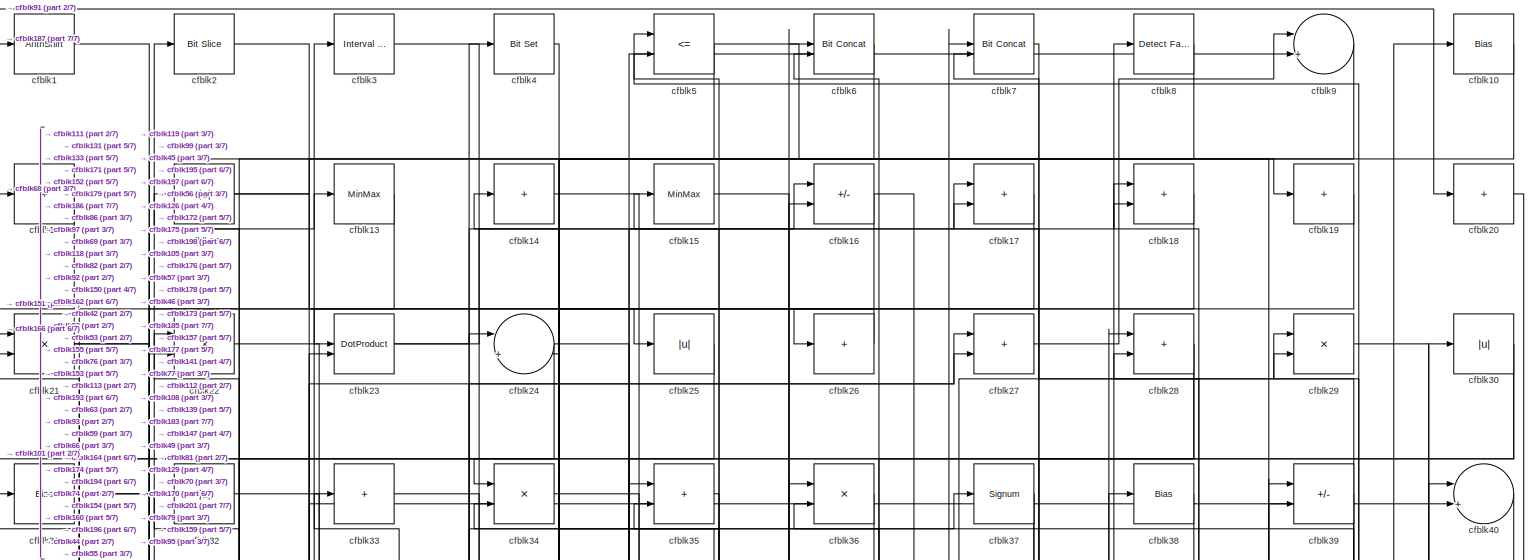
[diagram: root canvas - part 1/7, full width, top band]
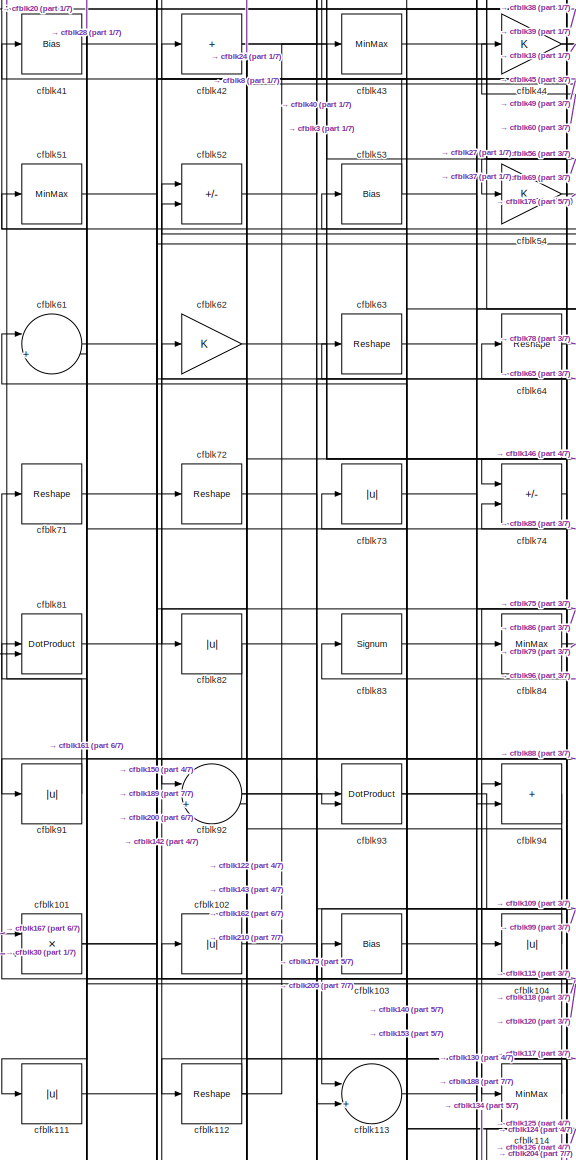
[diagram: root canvas - part 2/7, middle left region]
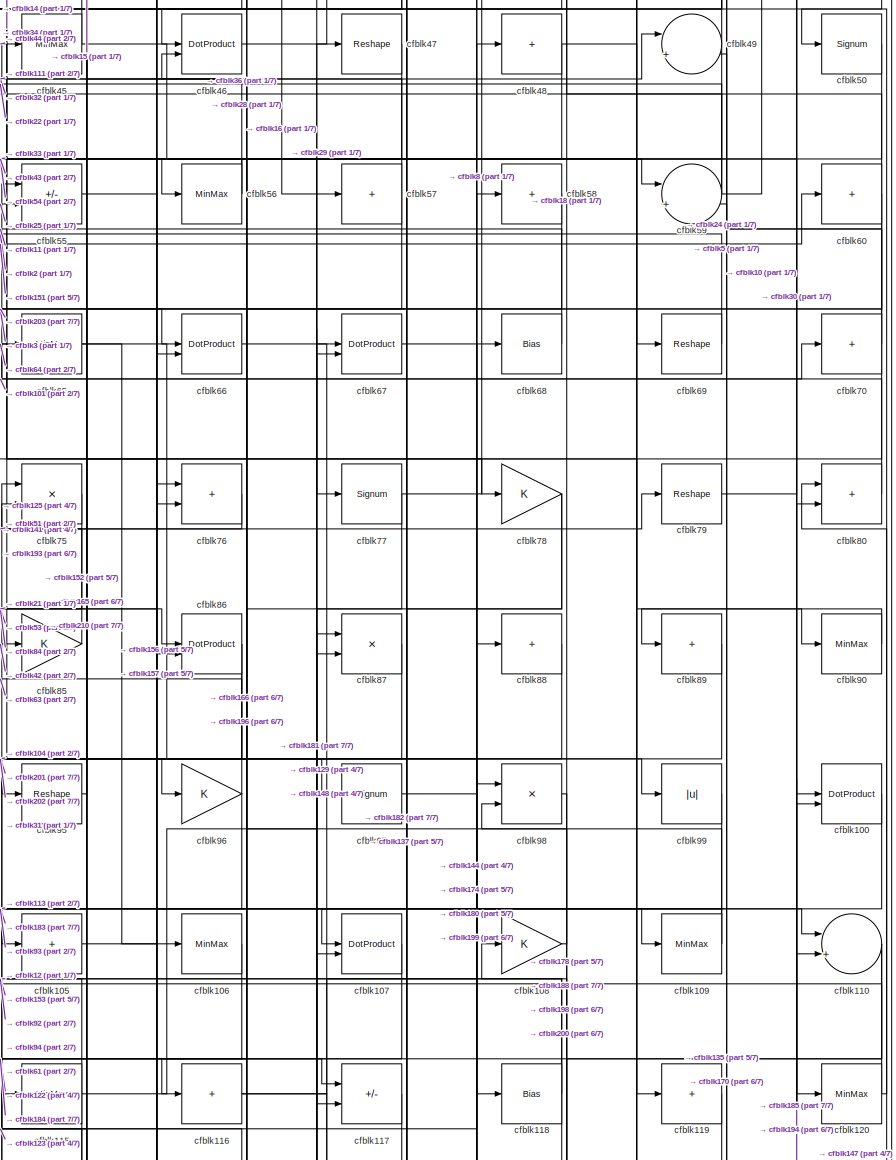
[diagram: root canvas - part 3/7, middle right region]
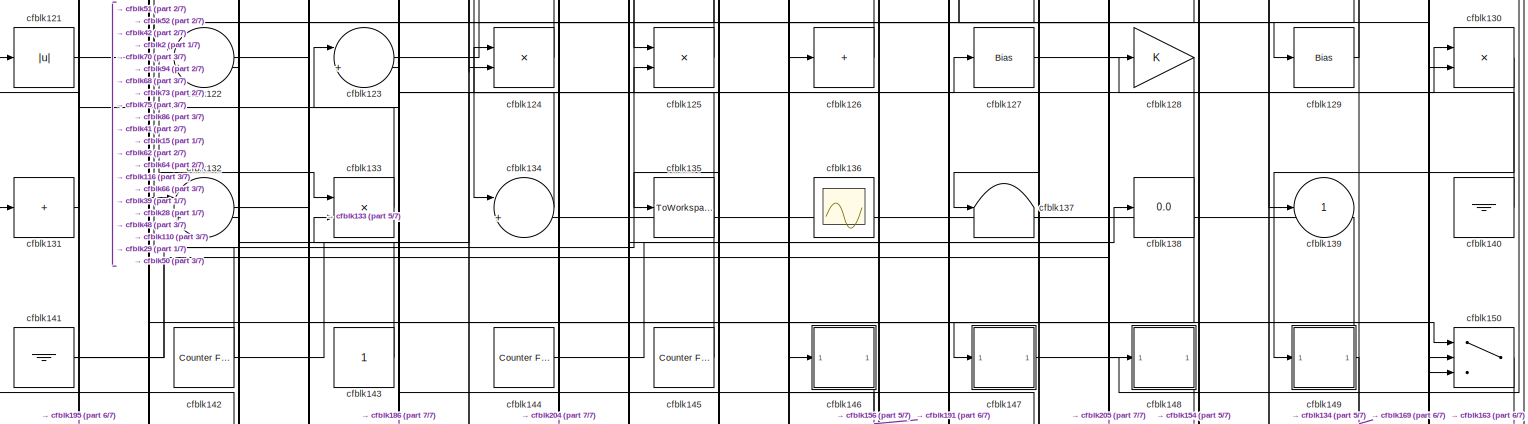
[diagram: root canvas - part 4/7, full width, middle band]
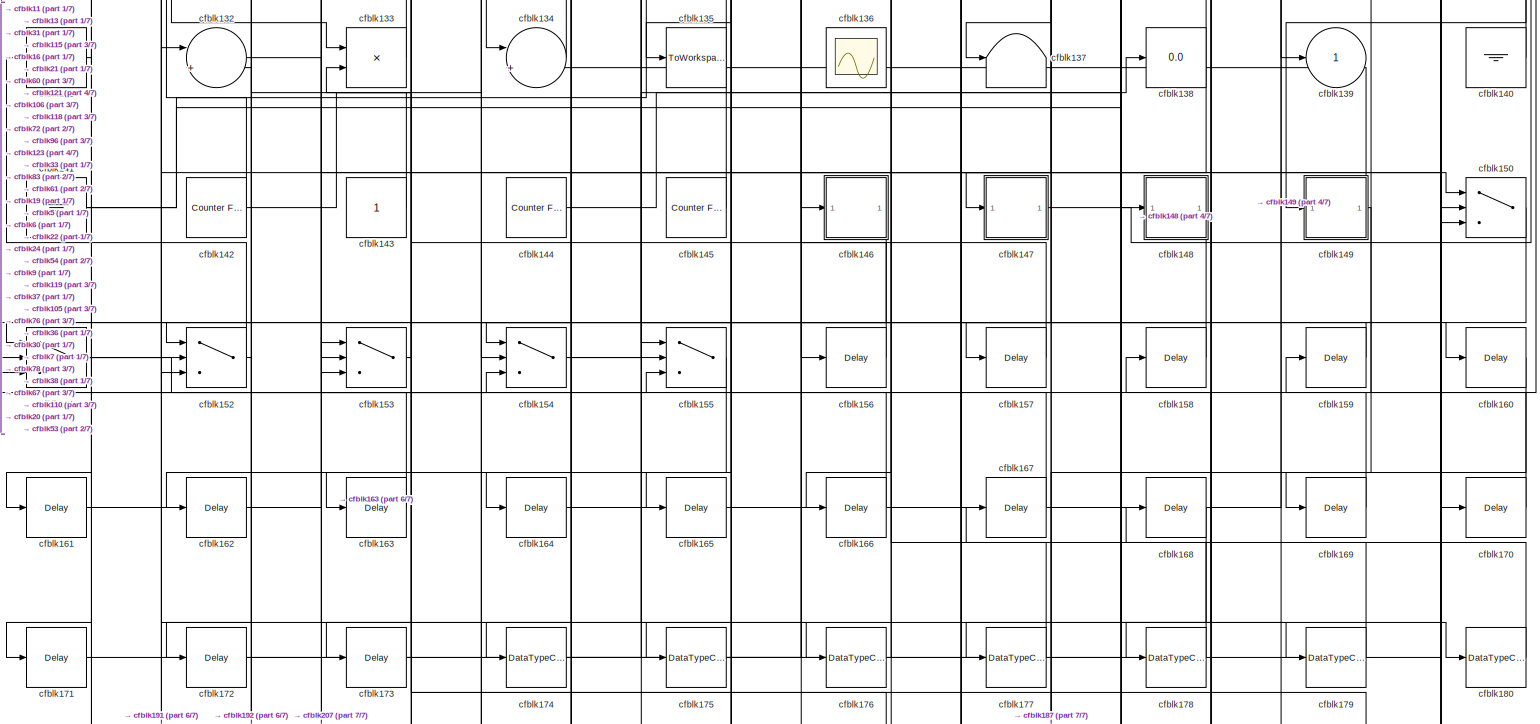
[diagram: root canvas - part 5/7, full width, bottom band]
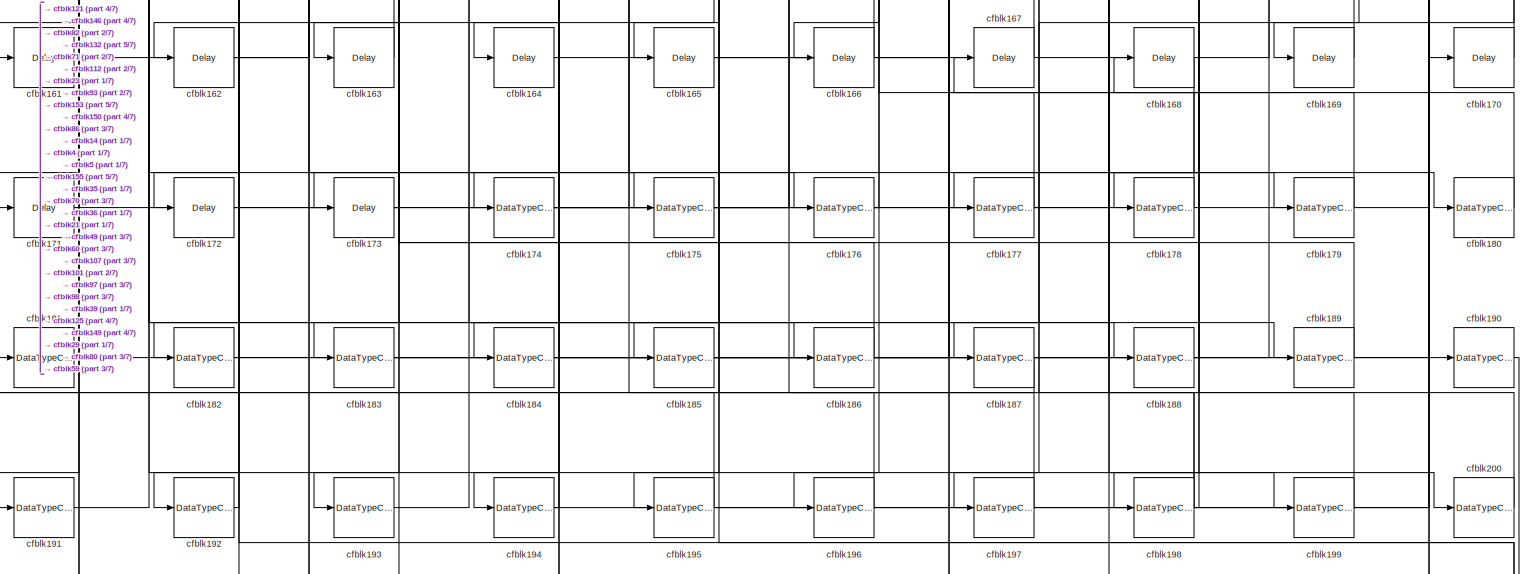
[diagram: root canvas - part 6/7, full width, bottom band]
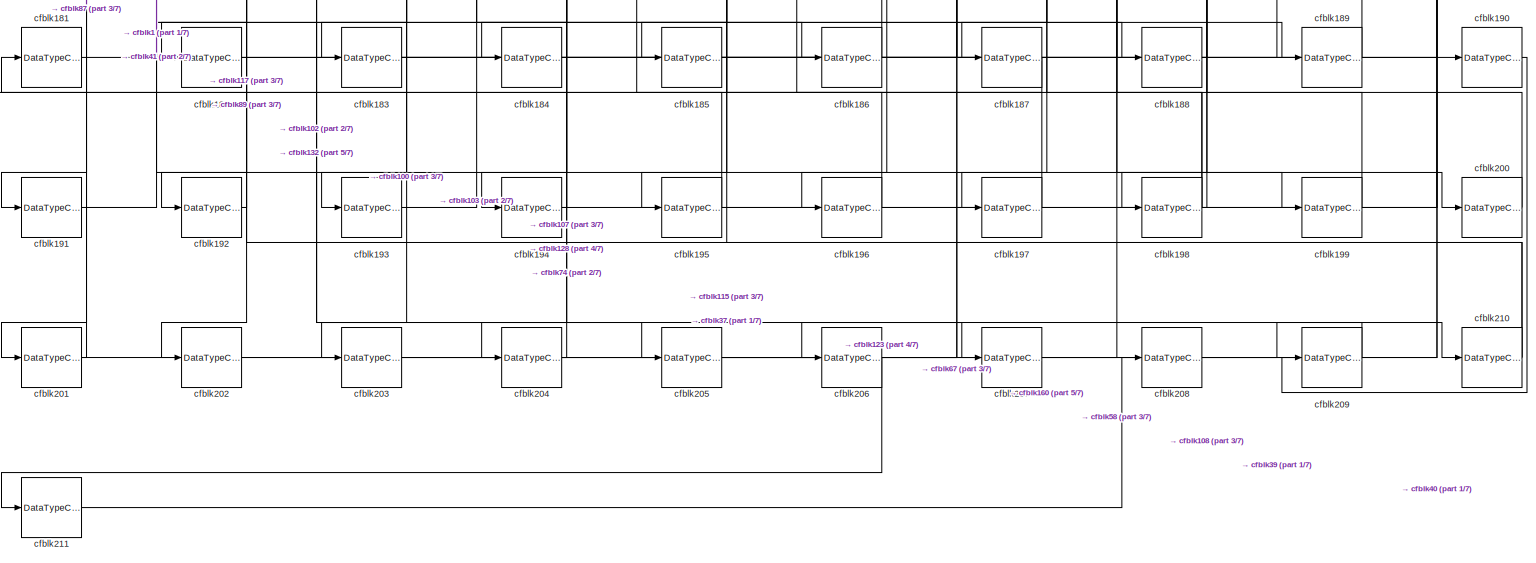
[diagram: root canvas - part 7/7, full width, bottom band]
MODEL slx_6d9340581242
KIND model
CONFIG AbsTol = auto
CONFIG EnableMultiTasking = off
CONFIG FixedStep = auto
CONFIG MaxStep = auto
CONFIG MinStep = auto
CONFIG RelTol = 1e-3
CONFIG SampleTimeConstraint = Unconstrained
CONFIG SolverName = VariableStepAuto
CONFIG StartTime = 0.0
CONFIG StopTime = 10.0
BLOCK [ArithShift] cfblk1
  BitShiftNumber = 8
  InputPortMap = u0
BLOCK [Bias] cfblk10
  Bias = 0.0
  SaturateOnIntegerOverflow = off
BLOCK [DotProduct] cfblk100
  OutDataTypeStr = Inherit: Inherit via internal rule
BLOCK [Product] cfblk101
  Inputs = */
  RndMeth = Zero
  SaturateOnIntegerOverflow = on
BLOCK [Abs] cfblk102
  SaturateOnIntegerOverflow = off
BLOCK [Bias] cfblk103
  Bias = 0.0
  SaturateOnIntegerOverflow = off
BLOCK [Abs] cfblk104
  SaturateOnIntegerOverflow = off
BLOCK [Sum] cfblk105
  IconShape = rectangular
  Inputs = +
BLOCK [MinMax] cfblk106
BLOCK [DotProduct] cfblk107
  OutDataTypeStr = Inherit: Inherit via internal rule
BLOCK [Gain] cfblk108
BLOCK [MinMax] cfblk109
BLOCK [Sum] cfblk11
  IconShape = rectangular
  Inputs = +
BLOCK [Sum] cfblk110
  Inputs = |++
BLOCK [Abs] cfblk111
  SaturateOnIntegerOverflow = off
BLOCK [Reshape] cfblk112
BLOCK [Sum] cfblk113
  Inputs = |++
BLOCK [MinMax] cfblk114
BLOCK [MinMax] cfblk115
BLOCK [Sum] cfblk116
  IconShape = rectangular
  Inputs = +
BLOCK [Sum] cfblk117
  IconShape = rectangular
  Inputs = +-
BLOCK [Bias] cfblk118
  Bias = 0.0
  SaturateOnIntegerOverflow = off
BLOCK [Sum] cfblk119
  IconShape = rectangular
  Inputs = +
BLOCK [Abs] cfblk12
  SaturateOnIntegerOverflow = off
BLOCK [MinMax] cfblk120
BLOCK [Abs] cfblk121
  SaturateOnIntegerOverflow = off
BLOCK [Sum] cfblk122
  Inputs = |++
BLOCK [Sum] cfblk123
  Inputs = |++
BLOCK [Product] cfblk124
  Inputs = */
  RndMeth = Zero
  SaturateOnIntegerOverflow = on
BLOCK [Product] cfblk125
  Inputs = */
  RndMeth = Zero
  SaturateOnIntegerOverflow = on
BLOCK [Sum] cfblk126
  IconShape = rectangular
  Inputs = +
BLOCK [Bias] cfblk127
  Bias = 0.0
  SaturateOnIntegerOverflow = off
BLOCK [Gain] cfblk128
BLOCK [Bias] cfblk129
  Bias = 0.0
  SaturateOnIntegerOverflow = off
BLOCK [MinMax] cfblk13
BLOCK [Product] cfblk130
  Inputs = */
  RndMeth = Zero
  SaturateOnIntegerOverflow = on
BLOCK [Sum] cfblk131
  IconShape = rectangular
  Inputs = +
BLOCK [Sum] cfblk132
  Inputs = |++
BLOCK [Product] cfblk133
  Inputs = */
  RndMeth = Zero
  SaturateOnIntegerOverflow = on
BLOCK [Sum] cfblk134
  Inputs = |++
BLOCK [ToWorkspace] cfblk135
  MaxDataPoints = inf
  SampleTime = -1
  SaveFormat = Timeseries
  VariableName = simout
BLOCK [Scope] cfblk136
  Floating = on
  NumInputPorts = 1
  ScopeSpecificationString = Simulink.scopes.TimeScopeBlockCfg('CurrentConfiguration', extmgr.ConfigurationSet(extmgr.Configuration('Core','General UI',true,'FigureColor',[0.156862745098039 0.156862745098039 0.156862745098039]),extmgr.Configuration('Core','Source UI',true),extmgr.Configuration('Sources','WiredSimulink',true,'DataLoggingVariableName','ScopeData1','DataLoggingSaveFormat','StructureWithTime','DataLoggingLimitDat...<+2713ch>
BLOCK [Terminator] cfblk137
BLOCK [Display] cfblk138
  Decimation = 1
BLOCK [Outport] cfblk139
  VectorParamsAs1DForOutWhenUnconnected = off
BLOCK [Sum] cfblk14
  IconShape = rectangular
  Inputs = +
BLOCK [Ground] cfblk140
BLOCK [Ground] cfblk141
BLOCK [Reference] cfblk142  REF=hdlsllib/Sources/Counter
Free-Running
  SourceBlock = hdlsllib/Sources/Counter\nFree-Running
  SourceType = Counter Free-Running
BLOCK [Constant] cfblk143
  SampleTime = -1
BLOCK [Reference] cfblk144  REF=hdlsllib/Sources/Counter
Free-Running
  SourceBlock = hdlsllib/Sources/Counter\nFree-Running
  SourceType = Counter Free-Running
BLOCK [Reference] cfblk145  REF=hdlsllib/Sources/Counter
Free-Running
  SourceBlock = hdlsllib/Sources/Counter\nFree-Running
  SourceType = Counter Free-Running
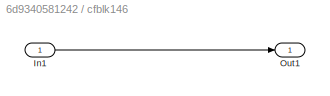
BLOCK [SubSystem] cfblk146
  LibrarySourceBlock = hdlsllib/Ports &\nSubsystems/Subsystem
BLOCK [Inport] cfblk146/In1
BLOCK [Outport] cfblk146/Out1
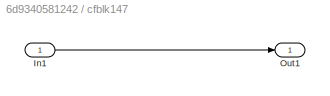
BLOCK [SubSystem] cfblk147
  LibrarySourceBlock = hdlsllib/Ports &\nSubsystems/Subsystem
BLOCK [Inport] cfblk147/In1
BLOCK [Outport] cfblk147/Out1
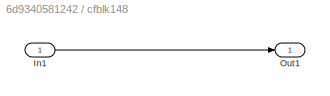
BLOCK [SubSystem] cfblk148
  LibrarySourceBlock = hdlsllib/Ports &\nSubsystems/Subsystem
BLOCK [Inport] cfblk148/In1
BLOCK [Outport] cfblk148/Out1
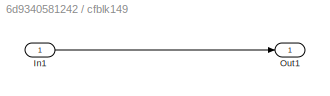
BLOCK [SubSystem] cfblk149
  LibrarySourceBlock = hdlsllib/Ports &\nSubsystems/Subsystem
BLOCK [Inport] cfblk149/In1
BLOCK [Outport] cfblk149/Out1
BLOCK [MinMax] cfblk15
BLOCK [Switch] cfblk150
  InputSameDT = off
  SaturateOnIntegerOverflow = off
BLOCK [Switch] cfblk151
  InputSameDT = off
  SaturateOnIntegerOverflow = off
BLOCK [Switch] cfblk152
  InputSameDT = off
  SaturateOnIntegerOverflow = off
BLOCK [Switch] cfblk153
  InputSameDT = off
  SaturateOnIntegerOverflow = off
BLOCK [Switch] cfblk154
  InputSameDT = off
  SaturateOnIntegerOverflow = off
BLOCK [Switch] cfblk155
  InputSameDT = off
  SaturateOnIntegerOverflow = off
BLOCK [Delay] cfblk156
  InputPortMap = u0
  SampleTime = 1
BLOCK [Delay] cfblk157
  InputPortMap = u0
  SampleTime = 1
BLOCK [Delay] cfblk158
  InputPortMap = u0
  SampleTime = 1
BLOCK [Delay] cfblk159
  InputPortMap = u0
  SampleTime = 1
BLOCK [Sum] cfblk16
  IconShape = rectangular
  Inputs = +-
BLOCK [Delay] cfblk160
  InputPortMap = u0
  SampleTime = 1
BLOCK [Delay] cfblk161
  InputPortMap = u0
  SampleTime = 1
BLOCK [Delay] cfblk162
  InputPortMap = u0
  SampleTime = 1
BLOCK [Delay] cfblk163
  InputPortMap = u0
  SampleTime = 1
BLOCK [Delay] cfblk164
  InputPortMap = u0
  SampleTime = 1
BLOCK [Delay] cfblk165
  InputPortMap = u0
  SampleTime = 1
BLOCK [Delay] cfblk166
  InputPortMap = u0
  SampleTime = 1
BLOCK [Delay] cfblk167
  InputPortMap = u0
  SampleTime = 1
BLOCK [Delay] cfblk168
  InputPortMap = u0
  SampleTime = 1
BLOCK [Delay] cfblk169
  InputPortMap = u0
  SampleTime = 1
BLOCK [Sum] cfblk17
  IconShape = rectangular
BLOCK [Delay] cfblk170
  InputPortMap = u0
  SampleTime = 1
BLOCK [Delay] cfblk171
  InputPortMap = u0
  SampleTime = 1
BLOCK [Delay] cfblk172
  InputPortMap = u0
  SampleTime = 1
BLOCK [Delay] cfblk173
  InputPortMap = u0
  SampleTime = 1
BLOCK [DataTypeConversion] cfblk174
  RndMeth = Floor
  SaturateOnIntegerOverflow = off
BLOCK [DataTypeConversion] cfblk175
  OutDataTypeStr = uint8
  RndMeth = Floor
  SaturateOnIntegerOverflow = off
BLOCK [DataTypeConversion] cfblk176
  OutDataTypeStr = uint8
  RndMeth = Floor
  SaturateOnIntegerOverflow = off
BLOCK [DataTypeConversion] cfblk177
  OutDataTypeStr = uint8
  RndMeth = Floor
  SaturateOnIntegerOverflow = off
BLOCK [DataTypeConversion] cfblk178
  OutDataTypeStr = uint8
  RndMeth = Floor
  SaturateOnIntegerOverflow = off
BLOCK [DataTypeConversion] cfblk179
  OutDataTypeStr = uint8
  RndMeth = Floor
  SaturateOnIntegerOverflow = off
BLOCK [Sum] cfblk18
  IconShape = rectangular
BLOCK [DataTypeConversion] cfblk180
  OutDataTypeStr = uint8
  RndMeth = Floor
  SaturateOnIntegerOverflow = off
BLOCK [DataTypeConversion] cfblk181
  OutDataTypeStr = uint8
  RndMeth = Floor
  SaturateOnIntegerOverflow = off
BLOCK [DataTypeConversion] cfblk182
  OutDataTypeStr = uint8
  RndMeth = Floor
  SaturateOnIntegerOverflow = off
BLOCK [DataTypeConversion] cfblk183
  RndMeth = Floor
  SaturateOnIntegerOverflow = off
BLOCK [DataTypeConversion] cfblk184
  OutDataTypeStr = uint8
  RndMeth = Floor
  SaturateOnIntegerOverflow = off
BLOCK [DataTypeConversion] cfblk185
  OutDataTypeStr = uint8
  RndMeth = Floor
  SaturateOnIntegerOverflow = off
BLOCK [DataTypeConversion] cfblk186
  OutDataTypeStr = uint8
  RndMeth = Floor
  SaturateOnIntegerOverflow = off
BLOCK [DataTypeConversion] cfblk187
  OutDataTypeStr = uint8
  RndMeth = Floor
  SaturateOnIntegerOverflow = off
BLOCK [DataTypeConversion] cfblk188
  OutDataTypeStr = uint8
  RndMeth = Floor
  SaturateOnIntegerOverflow = off
BLOCK [DataTypeConversion] cfblk189
  OutDataTypeStr = uint8
  RndMeth = Floor
  SaturateOnIntegerOverflow = off
BLOCK [Sum] cfblk19
  IconShape = rectangular
  Inputs = +
BLOCK [DataTypeConversion] cfblk190
  RndMeth = Floor
  SaturateOnIntegerOverflow = off
BLOCK [DataTypeConversion] cfblk191
  OutDataTypeStr = uint8
  RndMeth = Floor
  SaturateOnIntegerOverflow = off
BLOCK [DataTypeConversion] cfblk192
  OutDataTypeStr = uint8
  RndMeth = Floor
  SaturateOnIntegerOverflow = off
BLOCK [DataTypeConversion] cfblk193
  OutDataTypeStr = boolean
  RndMeth = Floor
  SaturateOnIntegerOverflow = off
BLOCK [DataTypeConversion] cfblk194
  RndMeth = Floor
  SaturateOnIntegerOverflow = off
BLOCK [DataTypeConversion] cfblk195
  RndMeth = Floor
  SaturateOnIntegerOverflow = off
BLOCK [DataTypeConversion] cfblk196
  OutDataTypeStr = uint8
  RndMeth = Floor
  SaturateOnIntegerOverflow = off
BLOCK [DataTypeConversion] cfblk197
  OutDataTypeStr = uint8
  RndMeth = Floor
  SaturateOnIntegerOverflow = off
BLOCK [DataTypeConversion] cfblk198
  RndMeth = Floor
  SaturateOnIntegerOverflow = off
BLOCK [DataTypeConversion] cfblk199
  OutDataTypeStr = uint8
  RndMeth = Floor
  SaturateOnIntegerOverflow = off
BLOCK [Reference] cfblk2  REF=hdlsllib/Logic and Bit
Operations/Bit Slice
  SourceBlock = hdlsllib/Logic and Bit\nOperations/Bit Slice
  SourceType = Bit Slice
BLOCK [Sum] cfblk20
  IconShape = rectangular
  Inputs = +
BLOCK [DataTypeConversion] cfblk200
  OutDataTypeStr = uint8
  RndMeth = Floor
  SaturateOnIntegerOverflow = off
BLOCK [DataTypeConversion] cfblk201
  RndMeth = Floor
  SaturateOnIntegerOverflow = off
BLOCK [DataTypeConversion] cfblk202
  OutDataTypeStr = uint8
  RndMeth = Floor
  SaturateOnIntegerOverflow = off
BLOCK [DataTypeConversion] cfblk203
  OutDataTypeStr = uint8
  RndMeth = Floor
  SaturateOnIntegerOverflow = off
BLOCK [DataTypeConversion] cfblk204
  OutDataTypeStr = uint8
  RndMeth = Floor
  SaturateOnIntegerOverflow = off
BLOCK [DataTypeConversion] cfblk205
  OutDataTypeStr = uint8
  RndMeth = Floor
  SaturateOnIntegerOverflow = off
BLOCK [DataTypeConversion] cfblk206
  RndMeth = Floor
  SaturateOnIntegerOverflow = off
BLOCK [DataTypeConversion] cfblk207
  OutDataTypeStr = uint8
  RndMeth = Floor
  SaturateOnIntegerOverflow = off
BLOCK [DataTypeConversion] cfblk208
  RndMeth = Floor
  SaturateOnIntegerOverflow = off
BLOCK [DataTypeConversion] cfblk209
  OutDataTypeStr = uint8
  RndMeth = Floor
  SaturateOnIntegerOverflow = off
BLOCK [Product] cfblk21
  Inputs = */
  RndMeth = Zero
  SaturateOnIntegerOverflow = on
BLOCK [DataTypeConversion] cfblk210
  RndMeth = Floor
  SaturateOnIntegerOverflow = off
BLOCK [DataTypeConversion] cfblk211
  OutDataTypeStr = uint8
  RndMeth = Floor
  SaturateOnIntegerOverflow = off
BLOCK [Product] cfblk22
  Inputs = */
  RndMeth = Zero
  SaturateOnIntegerOverflow = on
BLOCK [DotProduct] cfblk23
  OutDataTypeStr = Inherit: Inherit via internal rule
BLOCK [Sum] cfblk24
  Inputs = |++
BLOCK [Abs] cfblk25
  SaturateOnIntegerOverflow = off
BLOCK [Sum] cfblk26
  IconShape = rectangular
  Inputs = +
BLOCK [Sum] cfblk27
  IconShape = rectangular
BLOCK [Sum] cfblk28
  IconShape = rectangular
BLOCK [Product] cfblk29
  Inputs = */
  RndMeth = Zero
  SaturateOnIntegerOverflow = on
BLOCK [Reference] cfblk3  REF=hdlsllib/Logic and Bit
Operations/Interval Test
  SourceBlock = hdlsllib/Logic and Bit\nOperations/Interval Test
  SourceType = Interval Test
BLOCK [Abs] cfblk30
  SaturateOnIntegerOverflow = off
BLOCK [Bias] cfblk31
  Bias = 0.0
  SaturateOnIntegerOverflow = off
BLOCK [Abs] cfblk32
  SaturateOnIntegerOverflow = off
BLOCK [Sum] cfblk33
  IconShape = rectangular
  Inputs = +
BLOCK [Product] cfblk34
  Inputs = */
  RndMeth = Zero
  SaturateOnIntegerOverflow = on
BLOCK [Sum] cfblk35
  IconShape = rectangular
BLOCK [Product] cfblk36
  Inputs = */
  RndMeth = Zero
  SaturateOnIntegerOverflow = on
BLOCK [Signum] cfblk37
BLOCK [Bias] cfblk38
  Bias = 0.0
  SaturateOnIntegerOverflow = off
BLOCK [Sum] cfblk39
  IconShape = rectangular
  Inputs = +-
BLOCK [Reference] cfblk4  REF=simulink/Logic and Bit
Operations/Bit Set
  LibrarySourceBlock = hdlsllib/Logic and Bit\nOperations/Bit Set
  SourceBlock = simulink/Logic and Bit\nOperations/Bit Set
  SourceType = Bit Set
BLOCK [Sum] cfblk40
  Inputs = |++
BLOCK [Bias] cfblk41
  Bias = 0.0
  SaturateOnIntegerOverflow = off
BLOCK [Sum] cfblk42
  IconShape = rectangular
  Inputs = +
BLOCK [MinMax] cfblk43
BLOCK [Gain] cfblk44
BLOCK [MinMax] cfblk45
BLOCK [DotProduct] cfblk46
  OutDataTypeStr = Inherit: Inherit via internal rule
BLOCK [Reshape] cfblk47
BLOCK [Sum] cfblk48
  IconShape = rectangular
  Inputs = +
BLOCK [Sum] cfblk49
  Inputs = |++
BLOCK [RelationalOperator] cfblk5
  InputSameDT = off
  Operator = <=
  OutDataTypeStr = boolean
BLOCK [Signum] cfblk50
BLOCK [MinMax] cfblk51
BLOCK [Sum] cfblk52
  IconShape = rectangular
  Inputs = +-
BLOCK [Bias] cfblk53
  Bias = 0.0
  SaturateOnIntegerOverflow = off
BLOCK [Gain] cfblk54
BLOCK [Sum] cfblk55
  IconShape = rectangular
  Inputs = +-
BLOCK [MinMax] cfblk56
BLOCK [Sum] cfblk57
  IconShape = rectangular
  Inputs = +
BLOCK [Sum] cfblk58
  IconShape = rectangular
  Inputs = +
BLOCK [Sum] cfblk59
  Inputs = |++
BLOCK [Reference] cfblk6  REF=hdlsllib/Logic and Bit
Operations/Bit Concat
  SourceBlock = hdlsllib/Logic and Bit\nOperations/Bit Concat
  SourceType = Bit Concat
BLOCK [Sum] cfblk60
  IconShape = rectangular
  Inputs = +
BLOCK [Sum] cfblk61
  Inputs = |++
BLOCK [Gain] cfblk62
BLOCK [Reshape] cfblk63
BLOCK [Reshape] cfblk64
BLOCK [MinMax] cfblk65
BLOCK [DotProduct] cfblk66
  OutDataTypeStr = Inherit: Inherit via internal rule
BLOCK [DotProduct] cfblk67
  OutDataTypeStr = Inherit: Inherit via internal rule
BLOCK [Bias] cfblk68
  Bias = 0.0
  SaturateOnIntegerOverflow = off
BLOCK [Reshape] cfblk69
BLOCK [Reference] cfblk7  REF=hdlsllib/Logic and Bit
Operations/Bit Concat
  SourceBlock = hdlsllib/Logic and Bit\nOperations/Bit Concat
  SourceType = Bit Concat
BLOCK [Sum] cfblk70
  IconShape = rectangular
  Inputs = +
BLOCK [Reshape] cfblk71
BLOCK [Reshape] cfblk72
BLOCK [Abs] cfblk73
  SaturateOnIntegerOverflow = off
BLOCK [Sum] cfblk74
  IconShape = rectangular
  Inputs = +-
BLOCK [Product] cfblk75
  Inputs = */
  RndMeth = Zero
  SaturateOnIntegerOverflow = on
BLOCK [Sum] cfblk76
  IconShape = rectangular
BLOCK [Signum] cfblk77
BLOCK [Gain] cfblk78
BLOCK [Reshape] cfblk79
BLOCK [Reference] cfblk8  REF=hdlsllib/Logic and Bit
Operations/Detect Fall
Nonpositive
  SourceBlock = hdlsllib/Logic and Bit\nOperations/Detect Fall\nNonpositive
  SourceType = Detect Fall Nonpositive
BLOCK [Sum] cfblk80
  IconShape = rectangular
BLOCK [DotProduct] cfblk81
  OutDataTypeStr = Inherit: Inherit via internal rule
BLOCK [Abs] cfblk82
  SaturateOnIntegerOverflow = off
BLOCK [Signum] cfblk83
BLOCK [MinMax] cfblk84
BLOCK [Gain] cfblk85
BLOCK [DotProduct] cfblk86
  OutDataTypeStr = Inherit: Inherit via internal rule
BLOCK [Product] cfblk87
  Inputs = */
  RndMeth = Zero
  SaturateOnIntegerOverflow = on
BLOCK [Sum] cfblk88
  IconShape = rectangular
  Inputs = +
BLOCK [Sum] cfblk89
  IconShape = rectangular
  Inputs = +
BLOCK [Sum] cfblk9
  Inputs = |++
BLOCK [MinMax] cfblk90
BLOCK [Abs] cfblk91
  SaturateOnIntegerOverflow = off
BLOCK [Sum] cfblk92
  Inputs = |++
BLOCK [DotProduct] cfblk93
  OutDataTypeStr = Inherit: Inherit via internal rule
BLOCK [Sum] cfblk94
  IconShape = rectangular
BLOCK [Reshape] cfblk95
BLOCK [Gain] cfblk96
BLOCK [Signum] cfblk97
BLOCK [Product] cfblk98
  Inputs = */
  RndMeth = Zero
  SaturateOnIntegerOverflow = on
BLOCK [Abs] cfblk99
  SaturateOnIntegerOverflow = off
LINE cfblk100:1 -> cfblk183:1
NET cfblk101:1 -> cfblk45:1, cfblk65:1
LINE cfblk102:1 -> cfblk205:1
LINE cfblk103:1 -> cfblk188:1
LINE cfblk104:1 -> cfblk62:1
LINE cfblk105:1 -> cfblk156:1
LINE cfblk106:1 -> cfblk152:1
LINE cfblk107:1 -> cfblk184:1
LINE cfblk108:1 -> cfblk18:1
NET cfblk109:1 -> cfblk107:1, cfblk46:2
LINE cfblk10:1 -> cfblk22:2
NET cfblk110:1 -> cfblk122:2, cfblk178:1
LINE cfblk111:1 -> cfblk49:1
NET cfblk112:1 -> cfblk162:1, cfblk43:1, cfblk81:1
LINE cfblk113:1 -> cfblk27:1
LINE cfblk114:1 -> cfblk71:1
NET cfblk115:1 -> cfblk152:3, cfblk47:1, cfblk94:1
NET cfblk116:1 -> cfblk148:1, cfblk88:1
LINE cfblk117:1 -> cfblk182:1
NET cfblk118:1 -> cfblk12:1, cfblk153:3, cfblk92:2
LINE cfblk119:1 -> cfblk135:1
LINE cfblk11:1 -> cfblk151:3
NET cfblk120:1 -> cfblk61:2, cfblk80:1
LINE cfblk121:1 -> cfblk133:1
LINE cfblk122:1 -> cfblk70:1
LINE cfblk123:1 -> cfblk68:1
LINE cfblk124:1 -> cfblk73:1
LINE cfblk125:1 -> cfblk41:1
LINE cfblk126:1 -> cfblk64:1
LINE cfblk127:1 -> cfblk130:1
LINE cfblk128:1 -> cfblk204:1
LINE cfblk129:1 -> cfblk29:2
NET cfblk12:1 -> cfblk19:1, cfblk25:1
LINE cfblk130:1 -> cfblk149:1
LINE cfblk131:1 -> cfblk31:1
LINE cfblk132:1 -> cfblk207:1
LINE cfblk133:1 -> cfblk21:2
LINE cfblk134:1 -> cfblk61:1
LINE cfblk13:1 -> cfblk171:1
LINE cfblk140:1 -> cfblk53:1
NET cfblk141:1 -> cfblk28:1, cfblk75:1
NET cfblk142:1 -> cfblk127:1, cfblk52:2
LINE cfblk143:1 -> cfblk42:1
LINE cfblk144:1 -> cfblk48:1
LINE cfblk145:1 -> cfblk124:1
LINE cfblk146/In1:1 -> cfblk146/Out1:1
LINE cfblk146:1 -> cfblk191:1
LINE cfblk147/In1:1 -> cfblk147/Out1:1
LINE cfblk147:1 -> cfblk50:1
LINE cfblk148/In1:1 -> cfblk148/Out1:1
LINE cfblk148:1 -> cfblk154:2
LINE cfblk149/In1:1 -> cfblk149/Out1:1
NET cfblk149:1 -> cfblk134:2, cfblk169:1
LINE cfblk14:1 -> cfblk99:1
LINE cfblk150:1 -> cfblk163:1
NET cfblk151:1 -> cfblk154:3, cfblk155:3, cfblk60:1
NET cfblk152:1 -> cfblk131:1, cfblk172:1
NET cfblk153:1 -> cfblk33:1, cfblk83:1
NET cfblk154:1 -> cfblk138:1, cfblk9:2
LINE cfblk155:1 -> cfblk192:1
LINE cfblk156:1 -> cfblk123:2
LINE cfblk157:1 -> cfblk76:1
LINE cfblk158:1 -> cfblk151:1
LINE cfblk159:1 -> cfblk151:2
LINE cfblk15:1 -> cfblk126:1
LINE cfblk160:1 -> cfblk187:1
LINE cfblk161:1 -> cfblk93:1
LINE cfblk162:1 -> cfblk23:2
LINE cfblk163:1 -> cfblk153:1
LINE cfblk164:1 -> cfblk39:2
LINE cfblk165:1 -> cfblk107:2
LINE cfblk166:1 -> cfblk21:1
LINE cfblk167:1 -> cfblk101:1
LINE cfblk168:1 -> cfblk197:1
LINE cfblk169:1 -> cfblk125:2
NET cfblk16:1 -> cfblk152:2, cfblk57:1
LINE cfblk170:1 -> cfblk59:2
LINE cfblk171:1 -> cfblk155:2
LINE cfblk172:1 -> cfblk16:2
LINE cfblk173:1 -> cfblk133:2
NET cfblk174:1 -> cfblk110:2, cfblk38:1
LINE cfblk175:1 -> cfblk6:1
LINE cfblk176:1 -> cfblk6:2
LINE cfblk177:1 -> cfblk36:2
LINE cfblk178:1 -> cfblk7:1
LINE cfblk179:1 -> cfblk7:2
LINE cfblk17:1 -> cfblk74:1
LINE cfblk180:1 -> cfblk158:1
LINE cfblk181:1 -> cfblk67:1
LINE cfblk182:1 -> cfblk67:2
NET cfblk183:1 -> cfblk39:1, cfblk58:1
LINE cfblk184:1 -> cfblk100:1
LINE cfblk185:1 -> cfblk100:2
LINE cfblk186:1 -> cfblk123:1
LINE cfblk187:1 -> cfblk1:1
LINE cfblk188:1 -> cfblk108:1
LINE cfblk189:1 -> cfblk103:1
LINE cfblk18:1 -> cfblk26:1
LINE cfblk190:1 -> cfblk209:1
LINE cfblk191:1 -> cfblk132:1
LINE cfblk192:1 -> cfblk132:2
LINE cfblk193:1 -> cfblk4:1
NET cfblk194:1 -> cfblk14:1, cfblk80:2
NET cfblk195:1 -> cfblk121:1, cfblk150:3
LINE cfblk196:1 -> cfblk35:1
LINE cfblk197:1 -> cfblk35:2
NET cfblk198:1 -> cfblk167:1, cfblk168:1, cfblk36:1
LINE cfblk199:1 -> cfblk98:1
LINE cfblk19:1 -> cfblk154:1
LINE cfblk1:1 -> cfblk186:1
LINE cfblk200:1 -> cfblk98:2
NET cfblk201:1 -> cfblk181:1, cfblk40:1
LINE cfblk202:1 -> cfblk87:1
LINE cfblk203:1 -> cfblk87:2
LINE cfblk204:1 -> cfblk74:2
LINE cfblk205:1 -> cfblk128:1
LINE cfblk206:1 -> cfblk211:1
LINE cfblk207:1 -> cfblk190:1
LINE cfblk208:1 -> cfblk210:1
LINE cfblk209:1 -> cfblk206:1
LINE cfblk20:1 -> cfblk159:1
NET cfblk210:1 -> cfblk102:1, cfblk115:1
LINE cfblk211:1 -> cfblk208:1
NET cfblk21:1 -> cfblk179:1, cfblk86:2
LINE cfblk22:1 -> cfblk155:1
NET cfblk23:1 -> cfblk16:1, cfblk17:2
NET cfblk24:1 -> cfblk160:1, cfblk82:1
LINE cfblk25:1 -> cfblk55:2
LINE cfblk26:1 -> cfblk23:1
LINE cfblk27:1 -> cfblk9:1
NET cfblk28:1 -> cfblk111:1, cfblk46:1
LINE cfblk29:1 -> cfblk170:1
LINE cfblk2:1 -> cfblk150:2
NET cfblk30:1 -> cfblk101:2, cfblk157:1
NET cfblk31:1 -> cfblk13:1, cfblk97:1
LINE cfblk32:1 -> cfblk76:2
LINE cfblk33:1 -> cfblk59:1
LINE cfblk34:1 -> cfblk119:1
LINE cfblk35:1 -> cfblk195:1
LINE cfblk36:1 -> cfblk105:1
NET cfblk37:1 -> cfblk173:1, cfblk185:1
LINE cfblk38:1 -> cfblk112:1
NET cfblk39:1 -> cfblk147:1, cfblk17:1, cfblk81:2
LINE cfblk3:1 -> cfblk66:1
LINE cfblk40:1 -> cfblk91:1
LINE cfblk41:1 -> cfblk189:1
NET cfblk42:1 -> cfblk40:2, cfblk85:1
LINE cfblk43:1 -> cfblk69:1
NET cfblk44:1 -> cfblk120:1, cfblk18:2
NET cfblk45:1 -> cfblk34:2, cfblk77:1
LINE cfblk46:1 -> cfblk29:1
LINE cfblk47:1 -> cfblk66:2
NET cfblk48:1 -> cfblk56:1, cfblk90:1
NET cfblk49:1 -> cfblk166:1, cfblk24:2
LINE cfblk4:1 -> cfblk194:1
LINE cfblk50:1 -> cfblk96:1
LINE cfblk51:1 -> cfblk150:1
LINE cfblk52:1 -> cfblk27:2
NET cfblk53:1 -> cfblk3:1, cfblk86:1
LINE cfblk54:1 -> cfblk176:1
LINE cfblk55:1 -> cfblk110:1
NET cfblk56:1 -> cfblk15:1, cfblk54:1
NET cfblk57:1 -> cfblk32:1, cfblk95:1
LINE cfblk58:1 -> cfblk203:1
NET cfblk59:1 -> cfblk10:1, cfblk22:1, cfblk28:2
NET cfblk5:1 -> cfblk139:1, cfblk164:1
NET cfblk60:1 -> cfblk196:1, cfblk44:1, cfblk94:2
LINE cfblk61:1 -> cfblk72:1
LINE cfblk62:1 -> cfblk146:1
LINE cfblk63:1 -> cfblk24:1
NET cfblk64:1 -> cfblk122:1, cfblk78:1
NET cfblk65:1 -> cfblk106:1, cfblk118:1
LINE cfblk66:1 -> cfblk129:1
LINE cfblk67:1 -> cfblk180:1
LINE cfblk68:1 -> cfblk11:1
LINE cfblk69:1 -> cfblk2:1
LINE cfblk6:1 -> cfblk174:1
NET cfblk70:1 -> cfblk165:1, cfblk49:2, cfblk5:1
LINE cfblk71:1 -> cfblk200:1
LINE cfblk72:1 -> cfblk175:1
LINE cfblk73:1 -> cfblk130:2
LINE cfblk74:1 -> cfblk114:1
LINE cfblk75:1 -> cfblk84:1
LINE cfblk76:1 -> cfblk75:2
NET cfblk77:1 -> cfblk116:1, cfblk8:1
NET cfblk78:1 -> cfblk117:2, cfblk137:1
LINE cfblk79:1 -> cfblk30:1
LINE cfblk7:1 -> cfblk177:1
LINE cfblk80:1 -> cfblk55:1
LINE cfblk81:1 -> cfblk52:1
NET cfblk82:1 -> cfblk113:2, cfblk161:1
LINE cfblk83:1 -> cfblk134:1
LINE cfblk84:1 -> cfblk79:1
LINE cfblk85:1 -> cfblk51:1
NET cfblk86:1 -> cfblk125:1, cfblk193:1
LINE cfblk87:1 -> cfblk201:1
LINE cfblk88:1 -> cfblk104:1
LINE cfblk89:1 -> cfblk202:1
LINE cfblk8:1 -> cfblk92:1
LINE cfblk90:1 -> cfblk89:1
LINE cfblk91:1 -> cfblk20:1
NET cfblk92:1 -> cfblk117:1, cfblk93:2
NET cfblk93:1 -> cfblk109:1, cfblk37:1
LINE cfblk94:1 -> cfblk124:2
LINE cfblk95:1 -> cfblk5:2
NET cfblk96:1 -> cfblk153:2, cfblk63:1
LINE cfblk97:1 -> cfblk199:1
LINE cfblk98:1 -> cfblk198:1
LINE cfblk99:1 -> cfblk113:1
LINE cfblk9:1 -> cfblk34:1
note: NET lines group one-source signal fan-out (src -> all destinations, sorted); 1:1 wires keep LINE
